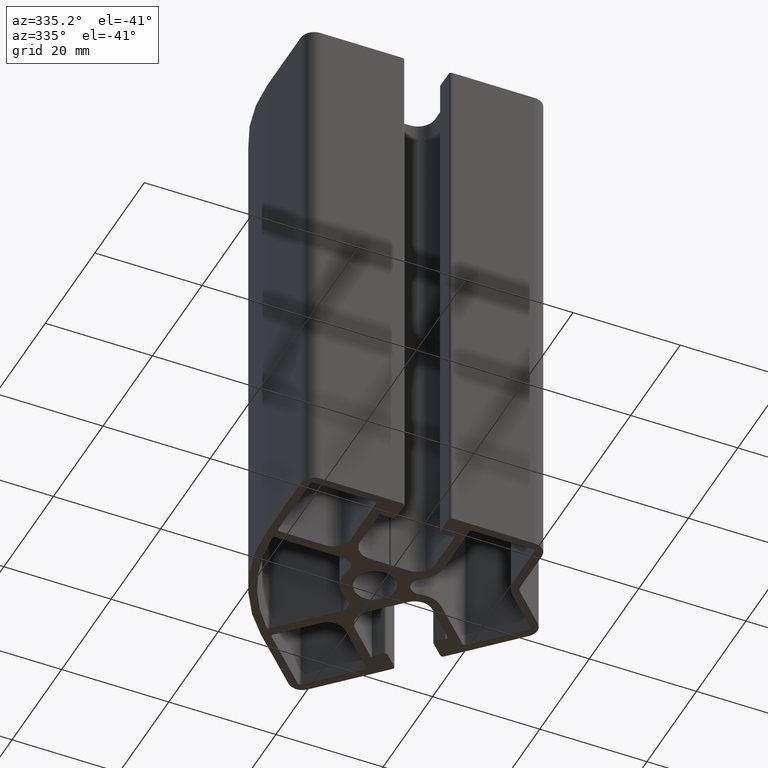
[diagram: clean part render]
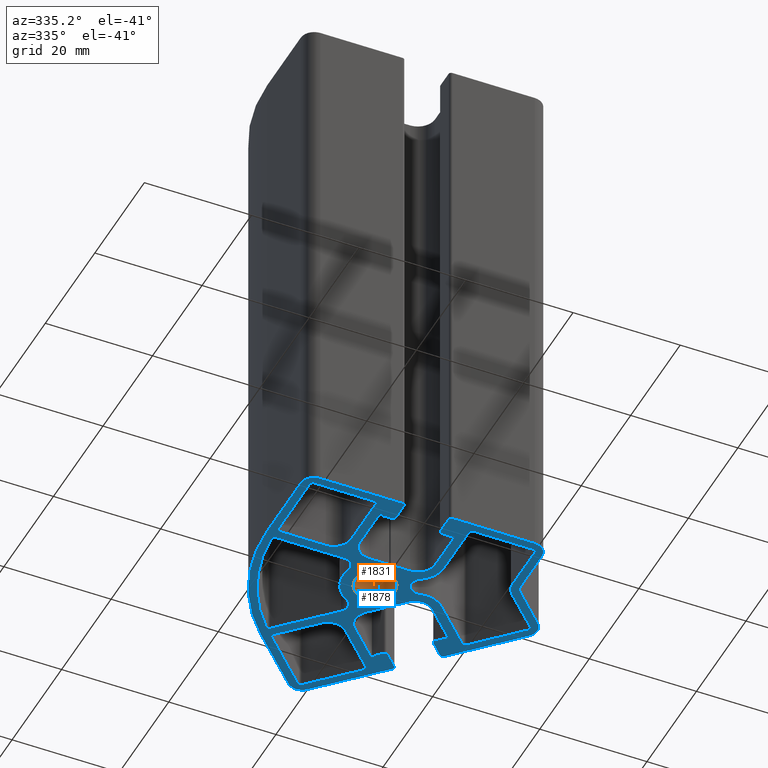
[diagram: same view with the hole feature highlighted: cylindrical wall and planar end face, labeled with their STEP entity ids]
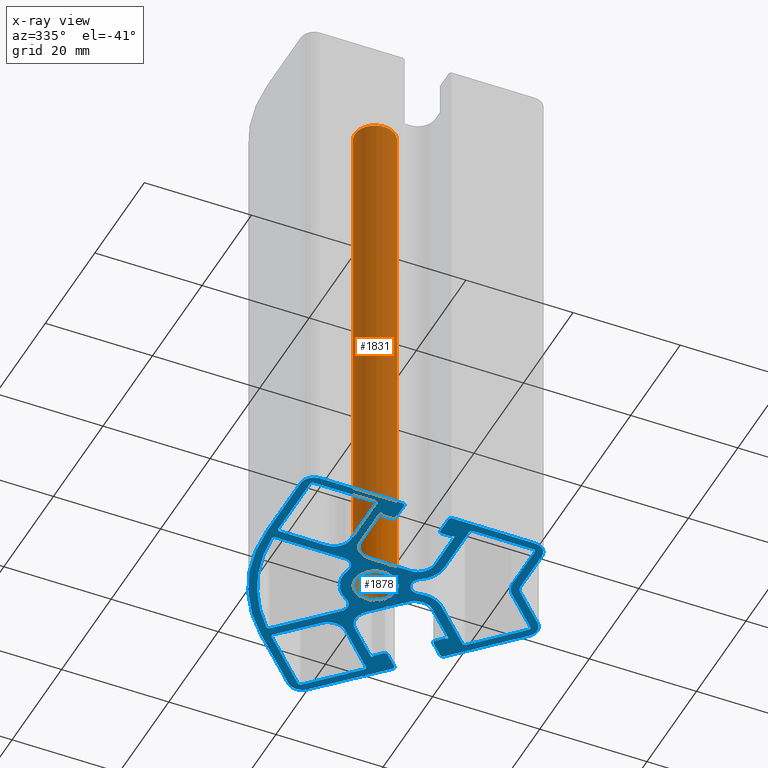
[diagram: x-ray of the same camera — body ghosted, the hole faces saturated]
A machine part, auxiliary view. The highlighted faces form one hole feature of diameter 7.47 mm: the cylindrical wall (entity #1831, orange) and its adjacent planar end face (entity #1878, blue) — they share a circular edge in the B-rep.
The next image is the same camera in x-ray (body ghosted, the hole faces saturated) — the bore reads through the body.
Wall:
#15=FACE_BOUND('',#304,.T.);
#68=CIRCLE('',#1970,3.735);
#69=CIRCLE('',#1971,3.735);
#139=CYLINDRICAL_SURFACE('',#1969,3.735);
#209=FACE_OUTER_BOUND('',#303,.T.);
#303=EDGE_LOOP('',(#1368));
#304=EDGE_LOOP('',(#1369));
#829=VERTEX_POINT('',#2912);
#830=VERTEX_POINT('',#2914);
#1053=EDGE_CURVE('',#829,#829,#68,.T.);
#1054=EDGE_CURVE('',#830,#830,#69,.T.);
#1368=ORIENTED_EDGE('',*,*,#1053,.F.);
#1369=ORIENTED_EDGE('',*,*,#1054,.T.);
#1831=ADVANCED_FACE('',(#209,#15),#139,.F.);
#1969=AXIS2_PLACEMENT_3D('',#2911,#2342,#2343);
#1970=AXIS2_PLACEMENT_3D('',#2913,#2344,#2345);
#1971=AXIS2_PLACEMENT_3D('',#2915,#2346,#2347);
#2342=DIRECTION('center_axis',(0.,0.,1.));
#2343=DIRECTION('ref_axis',(-1.,0.,0.));
#2344=DIRECTION('center_axis',(0.,0.,1.));
#2345=DIRECTION('ref_axis',(-1.,0.,0.));
#2346=DIRECTION('center_axis',(0.,0.,1.));
#2347=DIRECTION('ref_axis',(-1.,0.,0.));
#2911=CARTESIAN_POINT('Origin',(0.,0.,0.));
#2912=CARTESIAN_POINT('',(3.735,4.57405579481537E-16,0.));
#2913=CARTESIAN_POINT('Origin',(0.,0.,0.));
#2914=CARTESIAN_POINT('',(3.735,4.57405579481537E-16,100.));
#2915=CARTESIAN_POINT('Origin',(0.,0.,100.));
End face:
#16=FACE_BOUND('',#352,.T.);
#17=FACE_BOUND('',#353,.T.);
#18=FACE_BOUND('',#354,.T.);
#19=FACE_BOUND('',#355,.T.);
#20=FACE_BOUND('',#356,.T.);
#27=CIRCLE('',#1885,0.500000000000002);
#29=CIRCLE('',#1889,0.500000000000001);
#31=CIRCLE('',#1893,4.9);
#33=CIRCLE('',#1896,2.);
#35=CIRCLE('',#1900,2.);
#37=CIRCLE('',#1903,6.);
#39=CIRCLE('',#1908,0.500000000000002);
#41=CIRCLE('',#1912,3.2);
#43=CIRCLE('',#1916,0.500000000000003);
#45=CIRCLE('',#1920,3.2);
#47=CIRCLE('',#1924,3.2);
#49=CIRCLE('',#1928,0.25);
#51=CIRCLE('',#1932,0.500000000000004);
#53=CIRCLE('',#1936,0.499999999999994);
#55=CIRCLE('',#1940,2.5);
#57=CIRCLE('',#1944,2.00000000000001);
#59=CIRCLE('',#1948,2.5);
#61=CIRCLE('',#1952,0.499999999999998);
#63=CIRCLE('',#1956,0.500000000000003);
#65=CIRCLE('',#1960,0.25);
#67=CIRCLE('',#1964,3.2);
#68=CIRCLE('',#1970,3.735);
#71=CIRCLE('',#1974,4.9);
#73=CIRCLE('',#1977,3.5);
#75=CIRCLE('',#1981,0.499999999999998);
#77=CIRCLE('',#1985,0.5);
#79=CIRCLE('',#1989,6.);
#81=CIRCLE('',#1992,0.5);
#83=CIRCLE('',#1995,33.5);
#85=CIRCLE('',#1998,0.499999999999993);
#87=CIRCLE('',#2002,2.);
#89=CIRCLE('',#2005,0.500000000000002);
#91=CIRCLE('',#2009,0.499999999999993);
#93=CIRCLE('',#2013,0.500000000000003);
#95=CIRCLE('',#2017,0.500000000000003);
#97=CIRCLE('',#2021,3.2);
#99=CIRCLE('',#2025,0.25);
#101=CIRCLE('',#2029,0.500000000000003);
#103=CIRCLE('',#2033,0.5);
#105=CIRCLE('',#2037,2.5);
#107=CIRCLE('',#2041,35.);
#109=CIRCLE('',#2045,2.5);
#111=CIRCLE('',#2049,0.499999999999994);
#113=CIRCLE('',#2053,0.499999999999999);
#115=CIRCLE('',#2057,0.25);
#117=CIRCLE('',#2061,3.2);
#256=FACE_OUTER_BOUND('',#351,.T.);
#351=EDGE_LOOP('',(#1554,#1555,#1556,#1557,#1558,#1559,#1560,#1561,#1562,
#1563,#1564,#1565,#1566,#1567,#1568,#1569,#1570,#1571,#1572,#1573,#1574,
#1575,#1576,#1577,#1578,#1579,#1580,#1581,#1582,#1583,#1584,#1585,#1586,
#1587,#1588,#1589,#1590,#1591,#1592,#1593,#1594,#1595,#1596,#1597,#1598,
#1599,#1600,#1601,#1602,#1603));
#352=EDGE_LOOP('',(#1604,#1605,#1606,#1607,#1608,#1609,#1610,#1611,#1612,
#1613,#1614,#1615,#1616,#1617));
#353=EDGE_LOOP('',(#1618,#1619,#1620,#1621,#1622,#1623,#1624,#1625,#1626,
#1627,#1628));
#354=EDGE_LOOP('',(#1629,#1630,#1631,#1632,#1633,#1634,#1635,#1636));
#355=EDGE_LOOP('',(#1637,#1638,#1639,#1640,#1641,#1642,#1643,#1644));
#356=EDGE_LOOP('',(#1645));
#365=LINE('',#2633,#548);
#370=LINE('',#2646,#553);
#374=LINE('',#2658,#557);
#379=LINE('',#2678,#562);
#385=LINE('',#2697,#568);
#388=LINE('',#2703,#571);
#393=LINE('',#2718,#576);
#397=LINE('',#2730,#580);
#402=LINE('',#2745,#585);
#406=LINE('',#2757,#589);
#411=LINE('',#2772,#594);
#415=LINE('',#2784,#598);
#419=LINE('',#2796,#602);
#423=LINE('',#2808,#606);
#427=LINE('',#2820,#610);
#431=LINE('',#2832,#614);
#435=LINE('',#2844,#618);
#439=LINE('',#2856,#622);
#443=LINE('',#2868,#626);
#447=LINE('',#2880,#630);
#451=LINE('',#2892,#634);
#454=LINE('',#2898,#637);
#457=LINE('',#2904,#640);
#460=LINE('',#2910,#643);
#464=LINE('',#2932,#647);
#468=LINE('',#2944,#651);
#472=LINE('',#2954,#655);
#478=LINE('',#2983,#661);
#482=LINE('',#2998,#665);
#486=LINE('',#3008,#669);
#489=LINE('',#3019,#672);
#493=LINE('',#3029,#676);
#497=LINE('',#3041,#680);
#501=LINE('',#3053,#684);
#505=LINE('',#3065,#688);
#509=LINE('',#3077,#692);
#513=LINE('',#3089,#696);
#517=LINE('',#3101,#700);
#521=LINE('',#3113,#704);
#525=LINE('',#3125,#708);
#529=LINE('',#3137,#712);
#533=LINE('',#3149,#716);
#537=LINE('',#3161,#720);
#540=LINE('',#3167,#723);
#543=LINE('',#3173,#726);
#545=LINE('',#3176,#728);
#548=VECTOR('',#2074,9.08176772185916);
#553=VECTOR('',#2087,11.3);
#557=VECTOR('',#2099,10.2766348350158);
#562=VECTOR('',#2118,12.7840189553497);
#568=VECTOR('',#2138,0.28326697654333);
#571=VECTOR('',#2143,0.28326697654333);
#576=VECTOR('',#2156,8.6);
#580=VECTOR('',#2168,10.1);
#585=VECTOR('',#2181,10.1);
#589=VECTOR('',#2193,8.6);
#594=VECTOR('',#2206,7.8);
#598=VECTOR('',#2218,1.85000000000001);
#602=VECTOR('',#2230,3.3);
#606=VECTOR('',#2242,15.35);
#610=VECTOR('',#2254,8.58176772185917);
#614=VECTOR('',#2266,8.58176772185917);
#618=VECTOR('',#2278,15.35);
#622=VECTOR('',#2290,3.3);
#626=VECTOR('',#2302,1.85);
#630=VECTOR('',#2314,7.8);
#634=VECTOR('',#2326,3.5997);
#637=VECTOR('',#2331,0.28326697654333);
#640=VECTOR('',#2336,0.283266976543332);
#643=VECTOR('',#2341,3.5997);
#647=VECTOR('',#2365,9.08176772185917);
#651=VECTOR('',#2377,11.3);
#655=VECTOR('',#2389,10.2766348350158);
#661=VECTOR('',#2421,12.7840189553497);
#665=VECTOR('',#2439,12.8);
#669=VECTOR('',#2451,11.3);
#672=VECTOR('',#2462,11.3);
#676=VECTOR('',#2474,12.8);
#680=VECTOR('',#2486,7.8);
#684=VECTOR('',#2498,1.85);
#688=VECTOR('',#2510,3.3);
#692=VECTOR('',#2522,15.35);
#696=VECTOR('',#2534,13.5523304703363);
#700=VECTOR('',#2546,13.5523304703363);
#704=VECTOR('',#2558,15.35);
#708=VECTOR('',#2570,3.3);
#712=VECTOR('',#2582,1.85);
#716=VECTOR('',#2594,7.8);
#720=VECTOR('',#2606,3.5997);
#723=VECTOR('',#2611,0.283266976543331);
#726=VECTOR('',#2616,0.283266976543331);
#728=VECTOR('',#2620,3.5997);
#731=VERTEX_POINT('',#2630);
#732=VERTEX_POINT('',#2632);
#734=VERTEX_POINT('',#2638);
#736=VERTEX_POINT('',#2644);
#738=VERTEX_POINT('',#2650);
#740=VERTEX_POINT('',#2656);
#742=VERTEX_POINT('',#2662);
#744=VERTEX_POINT('',#2668);
#747=VERTEX_POINT('',#2675);
#748=VERTEX_POINT('',#2677);
#750=VERTEX_POINT('',#2683);
#752=VERTEX_POINT('',#2689);
#754=VERTEX_POINT('',#2695);
#756=VERTEX_POINT('',#2701);
#759=VERTEX_POINT('',#2708);
#760=VERTEX_POINT('',#2710);
#762=VERTEX_POINT('',#2716);
#764=VERTEX_POINT('',#2722);
#766=VERTEX_POINT('',#2728);
#769=VERTEX_POINT('',#2735);
#770=VERTEX_POINT('',#2737);
#772=VERTEX_POINT('',#2743);
#774=VERTEX_POINT('',#2749);
#776=VERTEX_POINT('',#2755);
#779=VERTEX_POINT('',#2762);
#780=VERTEX_POINT('',#2764);
#782=VERTEX_POINT('',#2770);
#784=VERTEX_POINT('',#2776);
#786=VERTEX_POINT('',#2782);
#788=VERTEX_POINT('',#2788);
#790=VERTEX_POINT('',#2794);
#792=VERTEX_POINT('',#2800);
#794=VERTEX_POINT('',#2806);
#796=VERTEX_POINT('',#2812);
#798=VERTEX_POINT('',#2818);
#800=VERTEX_POINT('',#2824);
#802=VERTEX_POINT('',#2830);
#804=VERTEX_POINT('',#2836);
#806=VERTEX_POINT('',#2842);
#808=VERTEX_POINT('',#2848);
#810=VERTEX_POINT('',#2854);
#812=VERTEX_POINT('',#2860);
#814=VERTEX_POINT('',#2866);
#816=VERTEX_POINT('',#2872);
#818=VERTEX_POINT('',#2878);
#820=VERTEX_POINT('',#2884);
#822=VERTEX_POINT('',#2890);
#824=VERTEX_POINT('',#2896);
#826=VERTEX_POINT('',#2902);
#828=VERTEX_POINT('',#2908);
#829=VERTEX_POINT('',#2912);
#832=VERTEX_POINT('',#2919);
#834=VERTEX_POINT('',#2925);
#836=VERTEX_POINT('',#2931);
#838=VERTEX_POINT('',#2937);
#840=VERTEX_POINT('',#2943);
#842=VERTEX_POINT('',#2949);
#844=VERTEX_POINT('',#2958);
#846=VERTEX_POINT('',#2964);
#848=VERTEX_POINT('',#2970);
#850=VERTEX_POINT('',#2976);
#852=VERTEX_POINT('',#2982);
#854=VERTEX_POINT('',#2991);
#856=VERTEX_POINT('',#2997);
#858=VERTEX_POINT('',#3003);
#860=VERTEX_POINT('',#3012);
#862=VERTEX_POINT('',#3018);
#864=VERTEX_POINT('',#3024);
#866=VERTEX_POINT('',#3033);
#868=VERTEX_POINT('',#3039);
#870=VERTEX_POINT('',#3045);
#872=VERTEX_POINT('',#3051);
#874=VERTEX_POINT('',#3057);
#876=VERTEX_POINT('',#3063);
#878=VERTEX_POINT('',#3069);
#880=VERTEX_POINT('',#3075);
#882=VERTEX_POINT('',#3081);
#884=VERTEX_POINT('',#3087);
#886=VERTEX_POINT('',#3093);
#888=VERTEX_POINT('',#3099);
#890=VERTEX_POINT('',#3105);
#892=VERTEX_POINT('',#3111);
#894=VERTEX_POINT('',#3117);
#896=VERTEX_POINT('',#3123);
#898=VERTEX_POINT('',#3129);
#900=VERTEX_POINT('',#3135);
#902=VERTEX_POINT('',#3141);
#904=VERTEX_POINT('',#3147);
#906=VERTEX_POINT('',#3153);
#908=VERTEX_POINT('',#3159);
#910=VERTEX_POINT('',#3165);
#912=VERTEX_POINT('',#3171);
#915=EDGE_CURVE('',#732,#731,#365,.T.);
#919=EDGE_CURVE('',#731,#734,#27,.T.);
#922=EDGE_CURVE('',#734,#736,#370,.T.);
#925=EDGE_CURVE('',#736,#738,#29,.T.);
#928=EDGE_CURVE('',#738,#740,#374,.T.);
#931=EDGE_CURVE('',#740,#742,#31,.T.);
#934=EDGE_CURVE('',#742,#744,#33,.T.);
#937=EDGE_CURVE('',#748,#747,#379,.T.);
#941=EDGE_CURVE('',#747,#750,#35,.T.);
#944=EDGE_CURVE('',#750,#752,#37,.T.);
#947=EDGE_CURVE('',#752,#754,#385,.T.);
#950=EDGE_CURVE('',#754,#756,#388,.T.);
#953=EDGE_CURVE('',#760,#759,#39,.T.);
#957=EDGE_CURVE('',#759,#762,#393,.T.);
#960=EDGE_CURVE('',#762,#764,#41,.T.);
#963=EDGE_CURVE('',#764,#766,#397,.T.);
#966=EDGE_CURVE('',#770,#769,#43,.T.);
#970=EDGE_CURVE('',#769,#772,#402,.T.);
#973=EDGE_CURVE('',#772,#774,#45,.T.);
#976=EDGE_CURVE('',#774,#776,#406,.T.);
#979=EDGE_CURVE('',#780,#779,#47,.T.);
#983=EDGE_CURVE('',#779,#782,#411,.T.);
#986=EDGE_CURVE('',#782,#784,#49,.T.);
#989=EDGE_CURVE('',#784,#786,#415,.T.);
#992=EDGE_CURVE('',#786,#788,#51,.T.);
#995=EDGE_CURVE('',#788,#790,#419,.T.);
#998=EDGE_CURVE('',#790,#792,#53,.T.);
#1001=EDGE_CURVE('',#792,#794,#423,.T.);
#1004=EDGE_CURVE('',#794,#796,#55,.T.);
#1007=EDGE_CURVE('',#796,#798,#427,.T.);
#1010=EDGE_CURVE('',#798,#800,#57,.T.);
#1013=EDGE_CURVE('',#800,#802,#431,.T.);
#1016=EDGE_CURVE('',#802,#804,#59,.T.);
#1019=EDGE_CURVE('',#804,#806,#435,.T.);
#1022=EDGE_CURVE('',#806,#808,#61,.T.);
#1025=EDGE_CURVE('',#808,#810,#439,.T.);
#1028=EDGE_CURVE('',#810,#812,#63,.T.);
#1031=EDGE_CURVE('',#812,#814,#443,.T.);
#1034=EDGE_CURVE('',#814,#816,#65,.T.);
#1037=EDGE_CURVE('',#816,#818,#447,.T.);
#1040=EDGE_CURVE('',#818,#820,#67,.T.);
#1043=EDGE_CURVE('',#820,#822,#451,.T.);
#1046=EDGE_CURVE('',#822,#824,#454,.T.);
#1049=EDGE_CURVE('',#824,#826,#457,.T.);
#1052=EDGE_CURVE('',#826,#828,#460,.T.);
#1053=EDGE_CURVE('',#829,#829,#68,.T.);
#1057=EDGE_CURVE('',#744,#832,#71,.T.);
#1059=EDGE_CURVE('',#834,#732,#73,.T.);
#1062=EDGE_CURVE('',#836,#834,#464,.T.);
#1065=EDGE_CURVE('',#838,#836,#75,.T.);
#1068=EDGE_CURVE('',#840,#838,#468,.T.);
#1071=EDGE_CURVE('',#842,#840,#77,.T.);
#1074=EDGE_CURVE('',#832,#842,#472,.T.);
#1077=EDGE_CURVE('',#756,#844,#79,.T.);
#1079=EDGE_CURVE('',#846,#748,#81,.T.);
#1082=EDGE_CURVE('',#848,#846,#83,.T.);
#1085=EDGE_CURVE('',#850,#848,#85,.T.);
#1088=EDGE_CURVE('',#852,#850,#478,.T.);
#1091=EDGE_CURVE('',#844,#852,#87,.T.);
#1094=EDGE_CURVE('',#766,#854,#89,.T.);
#1096=EDGE_CURVE('',#856,#760,#482,.T.);
#1099=EDGE_CURVE('',#858,#856,#91,.T.);
#1102=EDGE_CURVE('',#854,#858,#486,.T.);
#1105=EDGE_CURVE('',#776,#860,#93,.T.);
#1107=EDGE_CURVE('',#862,#770,#489,.T.);
#1110=EDGE_CURVE('',#864,#862,#95,.T.);
#1113=EDGE_CURVE('',#860,#864,#493,.T.);
#1116=EDGE_CURVE('',#828,#866,#97,.T.);
#1119=EDGE_CURVE('',#866,#868,#497,.T.);
#1122=EDGE_CURVE('',#868,#870,#99,.T.);
#1125=EDGE_CURVE('',#870,#872,#501,.T.);
#1128=EDGE_CURVE('',#872,#874,#101,.T.);
#1131=EDGE_CURVE('',#874,#876,#505,.T.);
#1134=EDGE_CURVE('',#876,#878,#103,.T.);
#1137=EDGE_CURVE('',#878,#880,#509,.T.);
#1140=EDGE_CURVE('',#880,#882,#105,.T.);
#1143=EDGE_CURVE('',#882,#884,#513,.T.);
#1146=EDGE_CURVE('',#884,#886,#107,.T.);
#1149=EDGE_CURVE('',#886,#888,#517,.T.);
#1152=EDGE_CURVE('',#888,#890,#109,.T.);
#1155=EDGE_CURVE('',#890,#892,#521,.T.);
#1158=EDGE_CURVE('',#892,#894,#111,.T.);
#1161=EDGE_CURVE('',#894,#896,#525,.T.);
#1164=EDGE_CURVE('',#896,#898,#113,.T.);
#1167=EDGE_CURVE('',#898,#900,#529,.T.);
#1170=EDGE_CURVE('',#900,#902,#115,.T.);
#1173=EDGE_CURVE('',#902,#904,#533,.T.);
#1176=EDGE_CURVE('',#904,#906,#117,.T.);
#1179=EDGE_CURVE('',#906,#908,#537,.T.);
#1182=EDGE_CURVE('',#908,#910,#540,.T.);
#1185=EDGE_CURVE('',#910,#912,#543,.T.);
#1187=EDGE_CURVE('',#912,#780,#545,.T.);
#1554=ORIENTED_EDGE('',*,*,#1116,.T.);
#1555=ORIENTED_EDGE('',*,*,#1119,.T.);
#1556=ORIENTED_EDGE('',*,*,#1122,.T.);
#1557=ORIENTED_EDGE('',*,*,#1125,.T.);
#1558=ORIENTED_EDGE('',*,*,#1128,.T.);
#1559=ORIENTED_EDGE('',*,*,#1131,.T.);
#1560=ORIENTED_EDGE('',*,*,#1134,.T.);
#1561=ORIENTED_EDGE('',*,*,#1137,.T.);
#1562=ORIENTED_EDGE('',*,*,#1140,.T.);
#1563=ORIENTED_EDGE('',*,*,#1143,.T.);
#1564=ORIENTED_EDGE('',*,*,#1146,.T.);
#1565=ORIENTED_EDGE('',*,*,#1149,.T.);
#1566=ORIENTED_EDGE('',*,*,#1152,.T.);
#1567=ORIENTED_EDGE('',*,*,#1155,.T.);
#1568=ORIENTED_EDGE('',*,*,#1158,.T.);
#1569=ORIENTED_EDGE('',*,*,#1161,.T.);
#1570=ORIENTED_EDGE('',*,*,#1164,.T.);
#1571=ORIENTED_EDGE('',*,*,#1167,.T.);
#1572=ORIENTED_EDGE('',*,*,#1170,.T.);
#1573=ORIENTED_EDGE('',*,*,#1173,.T.);
#1574=ORIENTED_EDGE('',*,*,#1176,.T.);
#1575=ORIENTED_EDGE('',*,*,#1179,.T.);
#1576=ORIENTED_EDGE('',*,*,#1182,.T.);
#1577=ORIENTED_EDGE('',*,*,#1185,.T.);
#1578=ORIENTED_EDGE('',*,*,#1187,.T.);
#1579=ORIENTED_EDGE('',*,*,#979,.T.);
#1580=ORIENTED_EDGE('',*,*,#983,.T.);
#1581=ORIENTED_EDGE('',*,*,#986,.T.);
#1582=ORIENTED_EDGE('',*,*,#989,.T.);
#1583=ORIENTED_EDGE('',*,*,#992,.T.);
#1584=ORIENTED_EDGE('',*,*,#995,.T.);
#1585=ORIENTED_EDGE('',*,*,#998,.T.);
#1586=ORIENTED_EDGE('',*,*,#1001,.T.);
#1587=ORIENTED_EDGE('',*,*,#1004,.T.);
#1588=ORIENTED_EDGE('',*,*,#1007,.T.);
#1589=ORIENTED_EDGE('',*,*,#1010,.T.);
#1590=ORIENTED_EDGE('',*,*,#1013,.T.);
#1591=ORIENTED_EDGE('',*,*,#1016,.T.);
#1592=ORIENTED_EDGE('',*,*,#1019,.T.);
#1593=ORIENTED_EDGE('',*,*,#1022,.T.);
#1594=ORIENTED_EDGE('',*,*,#1025,.T.);
#1595=ORIENTED_EDGE('',*,*,#1028,.T.);
#1596=ORIENTED_EDGE('',*,*,#1031,.T.);
#1597=ORIENTED_EDGE('',*,*,#1034,.T.);
#1598=ORIENTED_EDGE('',*,*,#1037,.T.);
#1599=ORIENTED_EDGE('',*,*,#1040,.T.);
#1600=ORIENTED_EDGE('',*,*,#1043,.T.);
#1601=ORIENTED_EDGE('',*,*,#1046,.T.);
#1602=ORIENTED_EDGE('',*,*,#1049,.T.);
#1603=ORIENTED_EDGE('',*,*,#1052,.T.);
#1604=ORIENTED_EDGE('',*,*,#1057,.T.);
#1605=ORIENTED_EDGE('',*,*,#1074,.T.);
#1606=ORIENTED_EDGE('',*,*,#1071,.T.);
#1607=ORIENTED_EDGE('',*,*,#1068,.T.);
#1608=ORIENTED_EDGE('',*,*,#1065,.T.);
#1609=ORIENTED_EDGE('',*,*,#1062,.T.);
#1610=ORIENTED_EDGE('',*,*,#1059,.T.);
#1611=ORIENTED_EDGE('',*,*,#915,.T.);
#1612=ORIENTED_EDGE('',*,*,#919,.T.);
#1613=ORIENTED_EDGE('',*,*,#922,.T.);
#1614=ORIENTED_EDGE('',*,*,#925,.T.);
#1615=ORIENTED_EDGE('',*,*,#928,.T.);
#1616=ORIENTED_EDGE('',*,*,#931,.T.);
#1617=ORIENTED_EDGE('',*,*,#934,.T.);
#1618=ORIENTED_EDGE('',*,*,#1077,.T.);
#1619=ORIENTED_EDGE('',*,*,#1091,.T.);
#1620=ORIENTED_EDGE('',*,*,#1088,.T.);
#1621=ORIENTED_EDGE('',*,*,#1085,.T.);
#1622=ORIENTED_EDGE('',*,*,#1082,.T.);
#1623=ORIENTED_EDGE('',*,*,#1079,.T.);
#1624=ORIENTED_EDGE('',*,*,#937,.T.);
#1625=ORIENTED_EDGE('',*,*,#941,.T.);
#1626=ORIENTED_EDGE('',*,*,#944,.T.);
#1627=ORIENTED_EDGE('',*,*,#947,.T.);
#1628=ORIENTED_EDGE('',*,*,#950,.T.);
#1629=ORIENTED_EDGE('',*,*,#1094,.T.);
#1630=ORIENTED_EDGE('',*,*,#1102,.T.);
#1631=ORIENTED_EDGE('',*,*,#1099,.T.);
#1632=ORIENTED_EDGE('',*,*,#1096,.T.);
#1633=ORIENTED_EDGE('',*,*,#953,.T.);
#1634=ORIENTED_EDGE('',*,*,#957,.T.);
#1635=ORIENTED_EDGE('',*,*,#960,.T.);
#1636=ORIENTED_EDGE('',*,*,#963,.T.);
#1637=ORIENTED_EDGE('',*,*,#1105,.T.);
#1638=ORIENTED_EDGE('',*,*,#1113,.T.);
#1639=ORIENTED_EDGE('',*,*,#1110,.T.);
#1640=ORIENTED_EDGE('',*,*,#1107,.T.);
#1641=ORIENTED_EDGE('',*,*,#966,.T.);
#1642=ORIENTED_EDGE('',*,*,#970,.T.);
#1643=ORIENTED_EDGE('',*,*,#973,.T.);
#1644=ORIENTED_EDGE('',*,*,#976,.T.);
#1645=ORIENTED_EDGE('',*,*,#1053,.T.);
#1784=PLANE('',#2066);
#1878=ADVANCED_FACE('',(#256,#16,#17,#18,#19,#20),#1784,.F.);
#1885=AXIS2_PLACEMENT_3D('',#2640,#2081,#2082);
#1889=AXIS2_PLACEMENT_3D('',#2652,#2093,#2094);
#1893=AXIS2_PLACEMENT_3D('',#2664,#2105,#2106);
#1896=AXIS2_PLACEMENT_3D('',#2670,#2112,#2113);
#1900=AXIS2_PLACEMENT_3D('',#2685,#2125,#2126);
#1903=AXIS2_PLACEMENT_3D('',#2691,#2132,#2133);
#1908=AXIS2_PLACEMENT_3D('',#2711,#2149,#2150);
#1912=AXIS2_PLACEMENT_3D('',#2724,#2162,#2163);
#1916=AXIS2_PLACEMENT_3D('',#2738,#2174,#2175);
#1920=AXIS2_PLACEMENT_3D('',#2751,#2187,#2188);
#1924=AXIS2_PLACEMENT_3D('',#2765,#2199,#2200);
#1928=AXIS2_PLACEMENT_3D('',#2778,#2212,#2213);
#1932=AXIS2_PLACEMENT_3D('',#2790,#2224,#2225);
#1936=AXIS2_PLACEMENT_3D('',#2802,#2236,#2237);
#1940=AXIS2_PLACEMENT_3D('',#2814,#2248,#2249);
#1944=AXIS2_PLACEMENT_3D('',#2826,#2260,#2261);
#1948=AXIS2_PLACEMENT_3D('',#2838,#2272,#2273);
#1952=AXIS2_PLACEMENT_3D('',#2850,#2284,#2285);
#1956=AXIS2_PLACEMENT_3D('',#2862,#2296,#2297);
#1960=AXIS2_PLACEMENT_3D('',#2874,#2308,#2309);
#1964=AXIS2_PLACEMENT_3D('',#2886,#2320,#2321);
#1970=AXIS2_PLACEMENT_3D('',#2913,#2344,#2345);
#1974=AXIS2_PLACEMENT_3D('',#2921,#2353,#2354);
#1977=AXIS2_PLACEMENT_3D('',#2926,#2359,#2360);
#1981=AXIS2_PLACEMENT_3D('',#2938,#2371,#2372);
#1985=AXIS2_PLACEMENT_3D('',#2950,#2383,#2384);
#1989=AXIS2_PLACEMENT_3D('',#2960,#2395,#2396);
#1992=AXIS2_PLACEMENT_3D('',#2965,#2401,#2402);
#1995=AXIS2_PLACEMENT_3D('',#2971,#2408,#2409);
#1998=AXIS2_PLACEMENT_3D('',#2977,#2415,#2416);
#2002=AXIS2_PLACEMENT_3D('',#2987,#2427,#2428);
#2005=AXIS2_PLACEMENT_3D('',#2993,#2434,#2435);
#2009=AXIS2_PLACEMENT_3D('',#3004,#2445,#2446);
#2013=AXIS2_PLACEMENT_3D('',#3014,#2457,#2458);
#2017=AXIS2_PLACEMENT_3D('',#3025,#2468,#2469);
#2021=AXIS2_PLACEMENT_3D('',#3035,#2480,#2481);
#2025=AXIS2_PLACEMENT_3D('',#3047,#2492,#2493);
#2029=AXIS2_PLACEMENT_3D('',#3059,#2504,#2505);
#2033=AXIS2_PLACEMENT_3D('',#3071,#2516,#2517);
#2037=AXIS2_PLACEMENT_3D('',#3083,#2528,#2529);
#2041=AXIS2_PLACEMENT_3D('',#3095,#2540,#2541);
#2045=AXIS2_PLACEMENT_3D('',#3107,#2552,#2553);
#2049=AXIS2_PLACEMENT_3D('',#3119,#2564,#2565);
#2053=AXIS2_PLACEMENT_3D('',#3131,#2576,#2577);
#2057=AXIS2_PLACEMENT_3D('',#3143,#2588,#2589);
#2061=AXIS2_PLACEMENT_3D('',#3155,#2600,#2601);
#2066=AXIS2_PLACEMENT_3D('',#3177,#2621,#2622);
#2074=DIRECTION('',(0.707106781186549,0.707106781186546,0.));
#2081=DIRECTION('center_axis',(0.,0.,1.));
#2082=DIRECTION('ref_axis',(0.707106781186552,-0.707106781186543,0.));
#2087=DIRECTION('',(-0.707106781186547,0.707106781186547,0.));
#2093=DIRECTION('center_axis',(0.,0.,1.));
#2094=DIRECTION('ref_axis',(0.707106781186545,0.70710678118655,0.));
#2099=DIRECTION('',(-0.707106781186548,-0.707106781186547,0.));
#2105=DIRECTION('center_axis',(0.,0.,-1.));
#2106=DIRECTION('ref_axis',(0.235790540727299,0.971803900436466,0.));
#2112=DIRECTION('center_axis',(0.,0.,1.));
#2113=DIRECTION('ref_axis',(0.235790540727299,0.971803900436466,0.));
#2118=DIRECTION('',(1.,4.34223004715025E-17,0.));
#2125=DIRECTION('center_axis',(0.,0.,1.));
#2126=DIRECTION('ref_axis',(0.,-1.,0.));
#2132=DIRECTION('center_axis',(0.,0.,-1.));
#2133=DIRECTION('ref_axis',(0.936139830222702,-0.351627954336129,0.));
#2138=DIRECTION('',(0.923879532511287,0.38268343236509,0.));
#2143=DIRECTION('',(-0.38268343236509,0.923879532511287,0.));
#2149=DIRECTION('center_axis',(0.,0.,1.));
#2150=DIRECTION('ref_axis',(0.707106781186552,-0.707106781186543,0.));
#2156=DIRECTION('',(0.707106781186547,-0.707106781186549,0.));
#2162=DIRECTION('center_axis',(0.,0.,1.));
#2163=DIRECTION('ref_axis',(0.707106781186548,0.707106781186547,0.));
#2168=DIRECTION('',(0.707106781186549,0.707106781186546,0.));
#2174=DIRECTION('center_axis',(0.,0.,1.));
#2175=DIRECTION('ref_axis',(0.,1.,0.));
#2181=DIRECTION('',(-1.09923071745065E-16,1.,0.));
#2187=DIRECTION('center_axis',(0.,0.,1.));
#2188=DIRECTION('ref_axis',(-1.,-3.46944695195361E-16,0.));
#2193=DIRECTION('',(-1.,-5.16382802151236E-16,0.));
#2199=DIRECTION('center_axis',(0.,0.,1.));
#2200=DIRECTION('ref_axis',(-0.707106781186548,-0.707106781186547,0.));
#2206=DIRECTION('',(0.707106781186548,0.707106781186547,0.));
#2212=DIRECTION('center_axis',(0.,0.,1.));
#2213=DIRECTION('ref_axis',(0.707106781186548,-0.707106781186548,0.));
#2218=DIRECTION('',(-0.707106781186548,0.707106781186547,0.));
#2224=DIRECTION('center_axis',(0.,0.,-1.));
#2225=DIRECTION('ref_axis',(0.707106781186549,-0.707106781186546,0.));
#2230=DIRECTION('',(0.707106781186548,0.707106781186547,0.));
#2236=DIRECTION('center_axis',(0.,0.,-1.));
#2237=DIRECTION('ref_axis',(-0.707106781186543,-0.707106781186552,0.));
#2242=DIRECTION('',(0.707106781186547,-0.707106781186548,0.));
#2248=DIRECTION('center_axis',(0.,0.,-1.));
#2249=DIRECTION('ref_axis',(-0.707106781186547,0.707106781186548,0.));
#2254=DIRECTION('',(-0.707106781186549,-0.707106781186546,0.));
#2260=DIRECTION('center_axis',(0.,0.,1.));
#2261=DIRECTION('ref_axis',(-0.707106781186547,0.707106781186547,0.));
#2266=DIRECTION('',(1.03495975245029E-15,-1.,0.));
#2272=DIRECTION('center_axis',(0.,0.,-1.));
#2273=DIRECTION('ref_axis',(-1.77635683940025E-15,1.,0.));
#2278=DIRECTION('',(-1.,0.,0.));
#2284=DIRECTION('center_axis',(0.,0.,-1.));
#2285=DIRECTION('ref_axis',(1.,0.,0.));
#2290=DIRECTION('',(0.,1.,0.));
#2296=DIRECTION('center_axis',(0.,0.,-1.));
#2297=DIRECTION('ref_axis',(0.,-1.,0.));
#2302=DIRECTION('',(1.,0.,0.));
#2308=DIRECTION('center_axis',(0.,0.,1.));
#2309=DIRECTION('ref_axis',(-1.,0.,0.));
#2314=DIRECTION('',(0.,1.,0.));
#2320=DIRECTION('center_axis',(0.,0.,1.));
#2321=DIRECTION('ref_axis',(1.,-3.46944695195361E-16,0.));
#2326=DIRECTION('',(-1.,-3.08420986366963E-16,0.));
#2331=DIRECTION('',(-0.707106781186548,0.707106781186547,0.));
#2336=DIRECTION('',(-0.707106781186548,-0.707106781186547,0.));
#2341=DIRECTION('',(-1.,3.08420986366963E-16,0.));
#2344=DIRECTION('center_axis',(0.,0.,1.));
#2345=DIRECTION('ref_axis',(-1.,0.,0.));
#2353=DIRECTION('center_axis',(0.,0.,-1.));
#2354=DIRECTION('ref_axis',(-1.,0.,0.));
#2359=DIRECTION('center_axis',(0.,0.,-1.));
#2360=DIRECTION('ref_axis',(0.707106781186548,-0.707106781186548,0.));
#2365=DIRECTION('',(-9.77979669709393E-16,1.,0.));
#2371=DIRECTION('center_axis',(0.,0.,1.));
#2372=DIRECTION('ref_axis',(0.,-1.,0.));
#2377=DIRECTION('',(1.,3.92999300752268E-16,0.));
#2383=DIRECTION('center_axis',(0.,0.,1.));
#2384=DIRECTION('ref_axis',(-1.,4.44089209850062E-15,0.));
#2389=DIRECTION('',(1.08033713608493E-16,-1.,0.));
#2395=DIRECTION('center_axis',(0.,0.,-1.));
#2396=DIRECTION('ref_axis',(0.482418344568452,-0.875940945968296,0.));
#2401=DIRECTION('center_axis',(0.,0.,1.));
#2402=DIRECTION('ref_axis',(-0.999032105465453,0.0439869554443619,0.));
#2408=DIRECTION('center_axis',(0.,0.,1.));
#2409=DIRECTION('ref_axis',(-0.737525850876149,0.675318901919243,0.));
#2415=DIRECTION('center_axis',(0.,0.,1.));
#2416=DIRECTION('ref_axis',(0.707106781186561,0.707106781186534,0.));
#2421=DIRECTION('',(-0.707106781186546,0.707106781186548,0.));
#2427=DIRECTION('center_axis',(0.,0.,1.));
#2428=DIRECTION('ref_axis',(0.482418344568452,-0.875940945968297,0.));
#2434=DIRECTION('center_axis',(0.,0.,1.));
#2435=DIRECTION('ref_axis',(-0.707106781186535,0.70710678118656,0.));
#2439=DIRECTION('',(-0.707106781186548,-0.707106781186548,0.));
#2445=DIRECTION('center_axis',(0.,0.,1.));
#2446=DIRECTION('ref_axis',(-0.707106781186545,-0.70710678118655,0.));
#2451=DIRECTION('',(-0.707106781186547,0.707106781186548,0.));
#2457=DIRECTION('center_axis',(0.,0.,1.));
#2458=DIRECTION('ref_axis',(0.,-1.,0.));
#2462=DIRECTION('',(1.,0.,0.));
#2468=DIRECTION('center_axis',(0.,0.,1.));
#2469=DIRECTION('ref_axis',(1.,0.,0.));
#2474=DIRECTION('',(0.,-1.,0.));
#2480=DIRECTION('center_axis',(0.,0.,1.));
#2481=DIRECTION('ref_axis',(0.,1.,0.));
#2486=DIRECTION('',(0.,-1.,0.));
#2492=DIRECTION('center_axis',(0.,0.,1.));
#2493=DIRECTION('ref_axis',(-1.,0.,0.));
#2498=DIRECTION('',(1.,1.20024110770287E-15,0.));
#2504=DIRECTION('center_axis',(0.,0.,-1.));
#2505=DIRECTION('ref_axis',(-1.,0.,0.));
#2510=DIRECTION('',(0.,-1.,0.));
#2516=DIRECTION('center_axis',(0.,0.,-1.));
#2517=DIRECTION('ref_axis',(0.,1.,0.));
#2522=DIRECTION('',(-1.,0.,0.));
#2528=DIRECTION('center_axis',(0.,0.,-1.));
#2529=DIRECTION('ref_axis',(1.,-1.77635683940025E-15,0.));
#2534=DIRECTION('',(-3.27684755638225E-16,1.,0.));
#2540=DIRECTION('center_axis',(0.,0.,-1.));
#2541=DIRECTION('ref_axis',(0.707106781186547,-0.707106781186548,0.));
#2546=DIRECTION('',(0.707106781186548,0.707106781186547,0.));
#2552=DIRECTION('center_axis',(0.,0.,-1.));
#2553=DIRECTION('ref_axis',(-0.707106781186546,-0.707106781186548,0.));
#2558=DIRECTION('',(0.707106781186547,-0.707106781186548,0.));
#2564=DIRECTION('center_axis',(0.,0.,-1.));
#2565=DIRECTION('ref_axis',(-0.707106781186548,0.707106781186548,0.));
#2570=DIRECTION('',(-0.707106781186549,-0.707106781186546,0.));
#2576=DIRECTION('center_axis',(0.,0.,-1.));
#2577=DIRECTION('ref_axis',(0.707106781186548,0.707106781186548,0.));
#2582=DIRECTION('',(-0.707106781186547,0.707106781186547,0.));
#2588=DIRECTION('center_axis',(0.,0.,1.));
#2589=DIRECTION('ref_axis',(0.707106781186548,-0.707106781186548,0.));
#2594=DIRECTION('',(-0.707106781186548,-0.707106781186547,0.));
#2600=DIRECTION('center_axis',(0.,0.,1.));
#2601=DIRECTION('ref_axis',(-0.707106781186547,0.707106781186548,0.));
#2606=DIRECTION('',(0.707106781186547,-0.707106781186548,0.));
#2611=DIRECTION('',(0.,-1.,0.));
#2616=DIRECTION('',(1.,0.,0.));
#2620=DIRECTION('',(0.707106781186547,-0.707106781186548,0.));
#2621=DIRECTION('center_axis',(0.,0.,1.));
#2622=DIRECTION('ref_axis',(1.,0.,0.));
#2630=CARTESIAN_POINT('',(28.4469058071348,-1.25157900270021,0.));
#2632=CARTESIAN_POINT('',(22.0251262658471,-7.67335854398791,0.));
#2633=CARTESIAN_POINT('',(20.442495744221,-9.25598906561397,0.));
#2638=CARTESIAN_POINT('',(28.4469058071348,-0.544472221513662,0.));
#2640=CARTESIAN_POINT('Origin',(28.0933524165415,-0.898025612106935,0.));
#2644=CARTESIAN_POINT('',(20.4565991797268,7.44583440589431,0.));
#2646=CARTESIAN_POINT('',(21.0403112999727,6.86212228564846,0.));
#2650=CARTESIAN_POINT('',(19.7494923985403,7.44583440589432,0.));
#2652=CARTESIAN_POINT('Origin',(20.1030457891336,7.09228101530104,0.));
#2656=CARTESIAN_POINT('',(12.4828142189227,0.179156226276783,0.));
#2658=CARTESIAN_POINT('',(14.9559721062704,2.65231411362441,0.));
#2662=CARTESIAN_POINT('',(7.86261734154489,-1.11785965804779,0.));
#2664=CARTESIAN_POINT('Origin',(9.01799099110866,3.64397945409088,0.));
#2668=CARTESIAN_POINT('',(6.3501561847018,-4.76926389546087,0.));
#2670=CARTESIAN_POINT('Origin',(7.39103626009029,-3.06146745892072,0.));
#2675=CARTESIAN_POINT('',(-7.68404052501026,-4.2261,0.));
#2677=CARTESIAN_POINT('',(-20.46805948036,-4.2261,0.));
#2678=CARTESIAN_POINT('',(-8.38746833134123,-4.2261,0.));
#2683=CARTESIAN_POINT('',(-5.7630303937577,-1.669575,0.));
#2685=CARTESIAN_POINT('Origin',(-7.68404052501026,-2.2261,0.));
#2689=CARTESIAN_POINT('',(-5.61683898133621,2.10976772601677,0.));
#2691=CARTESIAN_POINT('Origin',(0.,0.,0.));
#2695=CARTESIAN_POINT('',(-5.35513441947147,2.21816930487606,0.));
#2697=CARTESIAN_POINT('',(-1.25141076931696,3.91798729700128,0.));
#2701=CARTESIAN_POINT('',(-5.46353599833076,2.47987386674079,0.));
#2703=CARTESIAN_POINT('',(-5.06558173198387,1.51912727972191,0.));
#2708=CARTESIAN_POINT('',(-10.302545801888,18.6888322267605,0.));
#2710=CARTESIAN_POINT('',(-10.302545801888,19.395939007947,0.));
#2711=CARTESIAN_POINT('Origin',(-9.94899241129471,19.0423856173537,0.));
#2716=CARTESIAN_POINT('',(-4.22142748368369,12.6077139085561,0.));
#2718=CARTESIAN_POINT('',(-3.21345129472588,11.5997377195983,0.));
#2722=CARTESIAN_POINT('',(0.304055915910217,12.6077139085562,0.));
#2724=CARTESIAN_POINT('Origin',(-1.95868578388673,14.8704556083531,0.));
#2728=CARTESIAN_POINT('',(7.44583440589436,19.7494923985403,0.));
#2730=CARTESIAN_POINT('',(-0.918575131367626,11.3850828612783,0.));
#2735=CARTESIAN_POINT('',(-8.7,-19.23,0.));
#2737=CARTESIAN_POINT('',(-9.2,-19.73,0.));
#2738=CARTESIAN_POINT('Origin',(-9.2,-19.23,0.));
#2743=CARTESIAN_POINT('',(-8.7,-9.13,0.));
#2745=CARTESIAN_POINT('',(-8.7,-7.45093859116125,0.));
#2749=CARTESIAN_POINT('',(-11.9,-5.93,0.));
#2751=CARTESIAN_POINT('Origin',(-11.9,-9.13,0.));
#2755=CARTESIAN_POINT('',(-20.5,-5.93000000000001,0.));
#2757=CARTESIAN_POINT('',(-4.10343859116125,-5.93,0.));
#2762=CARTESIAN_POINT('',(11.405632380539,1.50613744392735,0.));
#2764=CARTESIAN_POINT('',(6.88014898094511,1.50613744392735,0.));
#2765=CARTESIAN_POINT('Origin',(9.14289068074206,3.7688791437243,0.));
#2770=CARTESIAN_POINT('',(16.9210652737941,7.02157033718241,0.));
#2772=CARTESIAN_POINT('',(12.9407177798887,3.04122284327704,0.));
#2776=CARTESIAN_POINT('',(16.5675118832008,7.37512372777568,0.));
#2778=CARTESIAN_POINT('Origin',(16.7442885784975,7.19834703247905,0.));
#2782=CARTESIAN_POINT('',(15.2593643380057,8.6832712729708,0.));
#2784=CARTESIAN_POINT('',(13.456591071747,10.4860445392295,0.));
#2788=CARTESIAN_POINT('',(15.2593643380057,9.39037805415735,0.));
#2790=CARTESIAN_POINT('Origin',(15.612917728599,9.03682466356407,0.));
#2794=CARTESIAN_POINT('',(17.5928167159213,11.723830432073,0.));
#2796=CARTESIAN_POINT('',(12.2689663377615,6.39998005391314,0.));
#2800=CARTESIAN_POINT('',(18.2999234971079,11.723830432073,0.));
#2802=CARTESIAN_POINT('Origin',(17.9463701065146,11.3702770414797,0.));
#2806=CARTESIAN_POINT('',(29.1540125883214,0.869741340859439,0.));
#2808=CARTESIAN_POINT('',(21.9241947764559,8.09955915272492,0.));
#2812=CARTESIAN_POINT('',(29.1540125883214,-2.6657925650733,0.));
#2814=CARTESIAN_POINT('Origin',(27.386245635355,-0.898025612106919,0.));
#2818=CARTESIAN_POINT('',(23.0857864376269,-8.73401871576774,0.));
#2820=CARTESIAN_POINT('',(21.5031559160008,-10.3166492373938,0.));
#2824=CARTESIAN_POINT('',(22.5,-10.1482322781408,0.));
#2826=CARTESIAN_POINT('Origin',(24.5,-10.1482322781408,0.));
#2830=CARTESIAN_POINT('',(22.5,-18.73,0.));
#2832=CARTESIAN_POINT('',(22.5,-7.20093859116124,0.));
#2836=CARTESIAN_POINT('',(20.,-21.23,0.));
#2838=CARTESIAN_POINT('Origin',(20.,-18.73,0.));
#2842=CARTESIAN_POINT('',(4.65,-21.23,0.));
#2844=CARTESIAN_POINT('',(4.17156140883874,-21.23,0.));
#2848=CARTESIAN_POINT('',(4.15,-20.73,0.));
#2850=CARTESIAN_POINT('Origin',(4.65,-20.73,0.));
#2854=CARTESIAN_POINT('',(4.15,-17.43,0.));
#2856=CARTESIAN_POINT('',(4.15,-6.55093859116125,0.));
#2860=CARTESIAN_POINT('',(4.65,-16.93,0.));
#2862=CARTESIAN_POINT('Origin',(4.65,-17.43,0.));
#2866=CARTESIAN_POINT('',(6.5,-16.93,0.));
#2868=CARTESIAN_POINT('',(5.09656140883875,-16.93,0.));
#2872=CARTESIAN_POINT('',(7.,-16.93,0.));
#2874=CARTESIAN_POINT('Origin',(6.75,-16.93,0.));
#2878=CARTESIAN_POINT('',(7.,-9.13000000000001,0.));
#2880=CARTESIAN_POINT('',(7.,-2.40093859116126,0.));
#2884=CARTESIAN_POINT('',(3.8,-5.93,0.));
#2886=CARTESIAN_POINT('Origin',(3.8,-9.13,0.));
#2890=CARTESIAN_POINT('',(0.2003,-5.93,0.));
#2892=CARTESIAN_POINT('',(1.94671140883875,-5.93,0.));
#2896=CARTESIAN_POINT('',(0.,-5.7297,0.));
#2898=CARTESIAN_POINT('',(-1.591175,-4.138525,0.));
#2902=CARTESIAN_POINT('',(-0.2003,-5.93,0.));
#2904=CARTESIAN_POINT('',(3.33758640883875,-2.39211359116126,0.));
#2908=CARTESIAN_POINT('',(-3.8,-5.93,0.));
#2910=CARTESIAN_POINT('',(-0.0534385911612539,-5.93,0.));
#2912=CARTESIAN_POINT('',(3.735,4.57405579481537E-16,0.));
#2913=CARTESIAN_POINT('Origin',(0.,0.,0.));
#2919=CARTESIAN_POINT('',(8.7,-8.95336516498425,0.));
#2921=CARTESIAN_POINT('Origin',(3.8,-8.95336516498425,0.));
#2925=CARTESIAN_POINT('',(21.,-10.1482322781408,0.));
#2926=CARTESIAN_POINT('Origin',(24.5,-10.1482322781408,0.));
#2931=CARTESIAN_POINT('',(21.,-19.23,0.));
#2932=CARTESIAN_POINT('',(21.,-7.45093859116124,0.));
#2937=CARTESIAN_POINT('',(20.5,-19.73,0.));
#2938=CARTESIAN_POINT('Origin',(20.5,-19.23,0.));
#2943=CARTESIAN_POINT('',(9.2,-19.73,0.));
#2944=CARTESIAN_POINT('',(6.44656140883875,-19.73,0.));
#2949=CARTESIAN_POINT('',(8.7,-19.23,0.));
#2950=CARTESIAN_POINT('Origin',(9.2,-19.23,0.));
#2954=CARTESIAN_POINT('',(8.7,-2.31262117365338,0.));
#2958=CARTESIAN_POINT('',(-2.89451006741071,5.25564567580978,0.));
#2960=CARTESIAN_POINT('Origin',(0.,0.,0.));
#2964=CARTESIAN_POINT('',(-20.9675755330927,-3.70410652227782,0.));
#2965=CARTESIAN_POINT('Origin',(-20.46805948036,-3.7261,0.));
#2970=CARTESIAN_POINT('',(-12.207116004351,17.445513684631,0.));
#2971=CARTESIAN_POINT('Origin',(12.5,-5.1776695296637,0.));
#2976=CARTESIAN_POINT('',(-11.4847996883196,17.4614076242646,0.));
#2977=CARTESIAN_POINT('Origin',(-11.8383530789129,17.1078542336713,0.));
#2982=CARTESIAN_POINT('',(-2.44513319417452,8.42174113011947,0.));
#2983=CARTESIAN_POINT('',(0.11283538689897,5.86377254904597,0.));
#2987=CARTESIAN_POINT('Origin',(-3.85934675654762,7.00752756774637,0.));
#2991=CARTESIAN_POINT('',(7.44583440589436,20.4565991797268,0.));
#2993=CARTESIAN_POINT('Origin',(7.09228101530109,20.1030457891336,0.));
#2997=CARTESIAN_POINT('',(-1.25157900270017,28.4469058071348,0.));
#2998=CARTESIAN_POINT('',(-6.04509929497009,23.6533855148649,0.));
#3003=CARTESIAN_POINT('',(-0.544472221513623,28.4469058071348,0.));
#3004=CARTESIAN_POINT('Origin',(-0.898025612106899,28.0933524165415,0.));
#3008=CARTESIAN_POINT('',(10.5397755993525,17.3626579862687,0.));
#3012=CARTESIAN_POINT('',(-21.,-6.43000000000001,0.));
#3014=CARTESIAN_POINT('Origin',(-20.5,-6.43000000000001,0.));
#3018=CARTESIAN_POINT('',(-20.5,-19.73,0.));
#3019=CARTESIAN_POINT('',(-8.40343859116125,-19.73,0.));
#3024=CARTESIAN_POINT('',(-21.,-19.23,0.));
#3025=CARTESIAN_POINT('Origin',(-20.5,-19.23,0.));
#3029=CARTESIAN_POINT('',(-21.,-1.05093859116126,0.));
#3033=CARTESIAN_POINT('',(-7.,-9.13,0.));
#3035=CARTESIAN_POINT('Origin',(-3.8,-9.13,0.));
#3039=CARTESIAN_POINT('',(-7.,-16.93,0.));
#3041=CARTESIAN_POINT('',(-7.,-6.30093859116125,0.));
#3045=CARTESIAN_POINT('',(-6.5,-16.93,0.));
#3047=CARTESIAN_POINT('Origin',(-6.75,-16.93,0.));
#3051=CARTESIAN_POINT('',(-4.65,-16.93,0.));
#3053=CARTESIAN_POINT('',(-0.47843859116124,-16.93,0.));
#3057=CARTESIAN_POINT('',(-4.15,-17.43,0.));
#3059=CARTESIAN_POINT('Origin',(-4.65,-17.43,0.));
#3063=CARTESIAN_POINT('',(-4.15,-20.73,0.));
#3065=CARTESIAN_POINT('',(-4.15,-8.20093859116125,0.));
#3069=CARTESIAN_POINT('',(-4.65,-21.23,0.));
#3071=CARTESIAN_POINT('Origin',(-4.65,-20.73,0.));
#3075=CARTESIAN_POINT('',(-20.,-21.23,0.));
#3077=CARTESIAN_POINT('',(-8.15343859116125,-21.23,0.));
#3081=CARTESIAN_POINT('',(-22.5,-18.73,0.));
#3083=CARTESIAN_POINT('Origin',(-20.,-18.73,0.));
#3087=CARTESIAN_POINT('',(-22.5,-5.17766952966368,0.));
#3089=CARTESIAN_POINT('',(-22.5,-0.424773355993099,0.));
#3093=CARTESIAN_POINT('',(-12.2487373415292,19.5710678118655,0.));
#3095=CARTESIAN_POINT('Origin',(12.5,-5.17766952966368,0.));
#3099=CARTESIAN_POINT('',(-2.66579256507328,29.1540125883214,0.));
#3101=CARTESIAN_POINT('',(-7.28253616204655,24.5372689913481,0.));
#3105=CARTESIAN_POINT('',(0.869741340859461,29.1540125883214,0.));
#3107=CARTESIAN_POINT('Origin',(-0.898025612106909,27.386245635355,0.));
#3111=CARTESIAN_POINT('',(11.723830432073,18.2999234971078,0.));
#3113=CARTESIAN_POINT('',(13.2091036983317,16.8146502308491,0.));
#3117=CARTESIAN_POINT('',(11.723830432073,17.5928167159213,0.));
#3119=CARTESIAN_POINT('Origin',(11.3702770414797,17.9463701065146,0.));
#3123=CARTESIAN_POINT('',(9.39037805415736,15.2593643380057,0.));
#3125=CARTESIAN_POINT('',(5.23325386495534,11.1022401488037,0.));
#3129=CARTESIAN_POINT('',(8.68327127297081,15.2593643380057,0.));
#3131=CARTESIAN_POINT('Origin',(9.03682466356409,15.612917728599,0.));
#3135=CARTESIAN_POINT('',(7.3751237277757,16.5675118832008,0.));
#3137=CARTESIAN_POINT('',(9.51447076663198,14.4281648443445,0.));
#3141=CARTESIAN_POINT('',(7.02157033718243,16.9210652737941,0.));
#3143=CARTESIAN_POINT('Origin',(7.19834703247906,16.7442885784974,0.));
#3147=CARTESIAN_POINT('',(1.50613744392736,11.405632380539,0.));
#3149=CARTESIAN_POINT('',(0.28350639664951,10.1830013332612,0.));
#3153=CARTESIAN_POINT('',(1.50613744392735,6.88014898094511,0.));
#3155=CARTESIAN_POINT('Origin',(3.76887914372431,9.14289068074206,0.));
#3159=CARTESIAN_POINT('',(4.05150972416457,4.3347767007079,0.));
#3161=CARTESIAN_POINT('',(3.9635764683004,4.42270995657206,0.));
#3165=CARTESIAN_POINT('',(4.05150972416457,4.05150972416456,0.));
#3167=CARTESIAN_POINT('',(4.05150972416457,4.18981627092103,0.));
#3171=CARTESIAN_POINT('',(4.3347767007079,4.05150972416456,0.));
#3173=CARTESIAN_POINT('',(4.0139497591927,4.05150972416456,0.));
#3176=CARTESIAN_POINT('',(5.37789609669067,3.00839032818179,0.));
#3177=CARTESIAN_POINT('Origin',(3.69312281767749,4.3281228176775,0.));